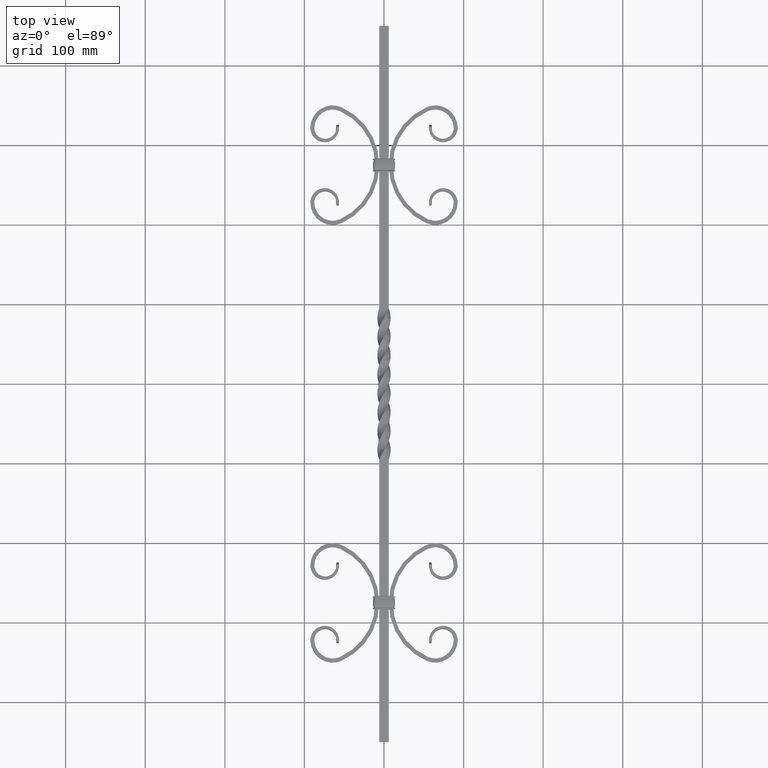
[diagram: clean part render]
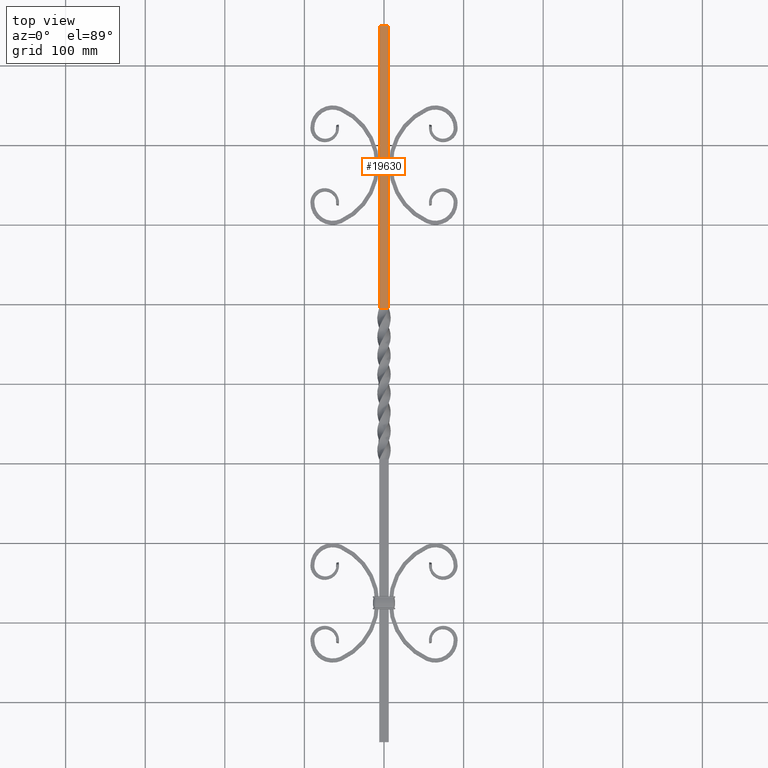
[diagram: same view with one face highlighted and labeled with its STEP entity id]
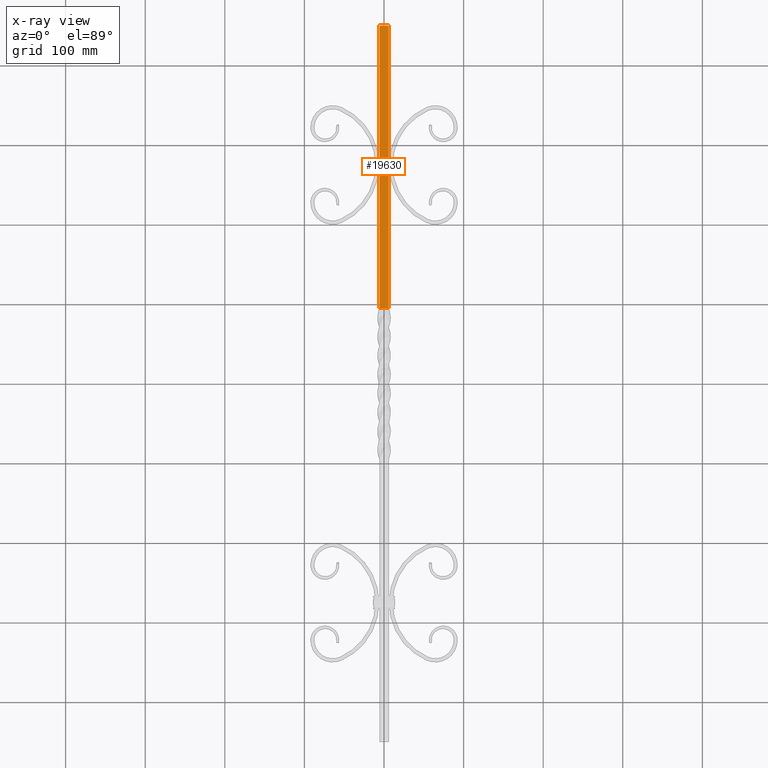
[diagram: x-ray of the same camera — body ghosted, the highlighted face saturated]
A machine part, top view. The second image highlights one B-rep face of the part: STEP entity #19630.
The next image is the same camera in x-ray: the body ghosted, the highlighted face saturated — about 0% of this face is hidden behind the body in this view.
In plain terms, the highlighted planar face has unit normal (0, 0, -1).
Its self-contained STEP definition (entity closure, byte-faithful):
#915 = CARTESIAN_POINT ( 'NONE',  ( 2.000000000000002665, 450.0000000000000000, 5.999999999999999112 ) ) ;
#1210 = CARTESIAN_POINT ( 'NONE',  ( 6.000000000000002665, 213.3333333333333712, 5.999999999999999112 ) ) ;
#3319 = ORIENTED_EDGE ( 'NONE', *, *, #22057, .F. ) ;
#5952 = B_SPLINE_CURVE_WITH_KNOTS ( 'NONE', 3,
 ( #10338, #12217, #915, #21383 ),
 .UNSPECIFIED., .F., .F.,
 ( 4, 4 ),
 ( 0.000000000000000000, 1.000000000000000000 ),
 .UNSPECIFIED. ) ;
#6247 = FACE_OUTER_BOUND ( 'NONE', #9618, .T. ) ;
#8741 = CARTESIAN_POINT ( 'NONE',  ( -5.999999999999998224, 95.00000025000002779, 5.999999999999999112 ) ) ;
#9618 = EDGE_LOOP ( 'NONE', ( #20448, #15887, #17750, #3319 ) ) ;
#10338 = CARTESIAN_POINT ( 'NONE',  ( -5.999999999999998224, 450.0000000000000000, 5.999999833333332866 ) ) ;
#10581 = CARTESIAN_POINT ( 'NONE',  ( 6.000000000000001776, 95.00000025000002779, 5.999999999999999112 ) ) ;
#10627 = CARTESIAN_POINT ( 'NONE',  ( -5.999999999999998224, 213.3333333333333712, 5.999999999999999112 ) ) ;
#11546 = VECTOR ( 'NONE', #23299, 1000.000000000000000 ) ;
#12217 = CARTESIAN_POINT ( 'NONE',  ( -1.999999999999997780, 450.0000000000000000, 5.999999999999999112 ) ) ;
#12413 = CARTESIAN_POINT ( 'NONE',  ( 6.000000000000002665, 331.6666666666667425, 5.999999999999999112 ) ) ;
#12505 = CARTESIAN_POINT ( 'NONE',  ( 6.000000000000002665, 450.0000000000000000, 5.999999999999999112 ) ) ;
#12818 = VERTEX_POINT ( 'NONE', #22186 ) ;
#12926 = CARTESIAN_POINT ( 'NONE',  ( -5.999999999999998224, 95.00000025000002779, 5.999999999999999112 ) ) ;
#13329 = CARTESIAN_POINT ( 'NONE',  ( -5.999999999999998224, 450.0000000000000000, 5.999999833333332866 ) ) ;
#13440 = PLANE ( 'NONE',  #18115 ) ;
#14459 = B_SPLINE_CURVE_WITH_KNOTS ( 'NONE', 3,
 ( #12505, #12413, #1210, #21775 ),
 .UNSPECIFIED., .F., .F.,
 ( 4, 4 ),
 ( 0.000000000000000000, 1.000000000000000000 ),
 .UNSPECIFIED. ) ;
#14786 = B_SPLINE_CURVE_WITH_KNOTS ( 'NONE', 3,
 ( #22119, #23943, #10627, #8741 ),
 .UNSPECIFIED., .F., .F.,
 ( 4, 4 ),
 ( 0.000000000000000000, 1.000000000000000000 ),
 .UNSPECIFIED. ) ;
#15331 = DIRECTION ( 'NONE',  ( -1.000000000000000000, 0.000000000000000000, -0.000000000000000000 ) ) ;
#15887 = ORIENTED_EDGE ( 'NONE', *, *, #21528, .T. ) ;
#16882 = EDGE_CURVE ( 'NONE', #17091, #20821, #14786, .T. ) ;
#17091 = VERTEX_POINT ( 'NONE', #13329 ) ;
#17750 = ORIENTED_EDGE ( 'NONE', *, *, #18647, .F. ) ;
#17924 = CARTESIAN_POINT ( 'NONE',  ( -5.999999999999998224, 95.00000000000002842, 5.999999999999999112 ) ) ;
#18115 = AXIS2_PLACEMENT_3D ( 'NONE', #18890, #22605, #15331 ) ;
#18335 = LINE ( 'NONE', #17924, #11546 ) ;
#18647 = EDGE_CURVE ( 'NONE', #12818, #22123, #14459, .T. ) ;
#18890 = CARTESIAN_POINT ( 'NONE',  ( -5.999999999999998224, 450.0000000000000000, 5.999999999999999112 ) ) ;
#19630 = ADVANCED_FACE ( 'NONE', ( #6247 ), #13440, .F. ) ;
#20448 = ORIENTED_EDGE ( 'NONE', *, *, #16882, .T. ) ;
#20821 = VERTEX_POINT ( 'NONE', #12926 ) ;
#21383 = CARTESIAN_POINT ( 'NONE',  ( 6.000000000000002665, 450.0000000000000000, 5.999999999999999112 ) ) ;
#21528 = EDGE_CURVE ( 'NONE', #20821, #22123, #18335, .T. ) ;
#21775 = CARTESIAN_POINT ( 'NONE',  ( 6.000000000000001776, 95.00000025000002779, 5.999999999999999112 ) ) ;
#22057 = EDGE_CURVE ( 'NONE', #17091, #12818, #5952, .T. ) ;
#22119 = CARTESIAN_POINT ( 'NONE',  ( -5.999999999999998224, 450.0000000000000000, 5.999999833333332866 ) ) ;
#22123 = VERTEX_POINT ( 'NONE', #10581 ) ;
#22186 = CARTESIAN_POINT ( 'NONE',  ( 6.000000000000002665, 450.0000000000000000, 5.999999999999999112 ) ) ;
#22605 = DIRECTION ( 'NONE',  ( 0.000000000000000000, 0.000000000000000000, -1.000000000000000000 ) ) ;
#23299 = DIRECTION ( 'NONE',  ( 1.000000000000000000, -0.000000000000000000, 0.000000000000000000 ) ) ;
#23943 = CARTESIAN_POINT ( 'NONE',  ( -5.999999999999998224, 331.6666666666667425, 5.999999999999999112 ) ) ;